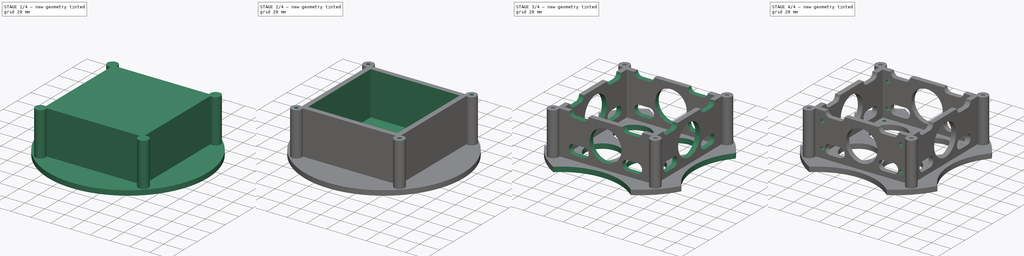
[diagram: build sequence overview — one tinted view per stage of 4, left to right]
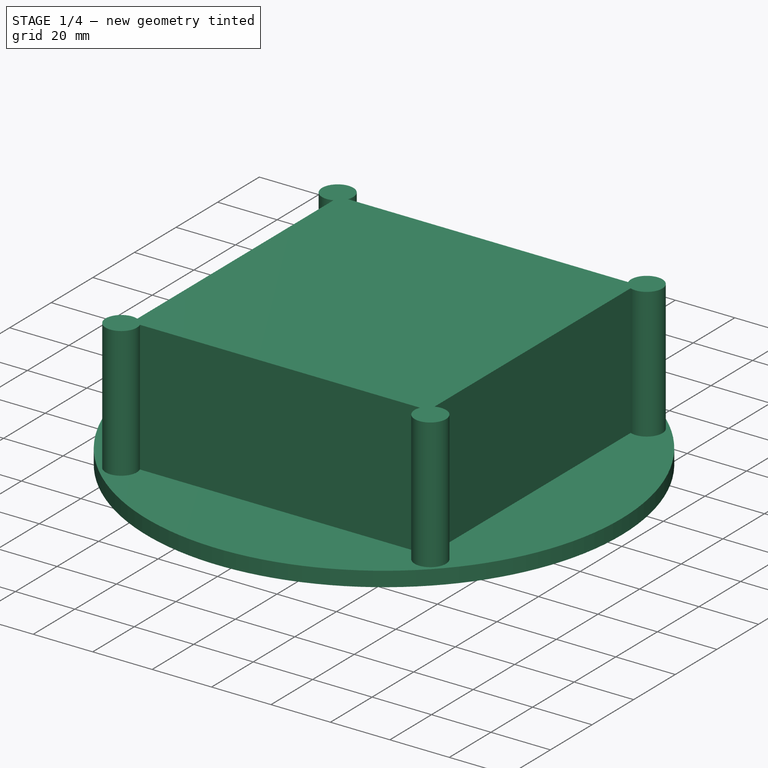
[diagram: stage 1 of 4 — iso view after this stage's code; geometry added in this stage tinted green]
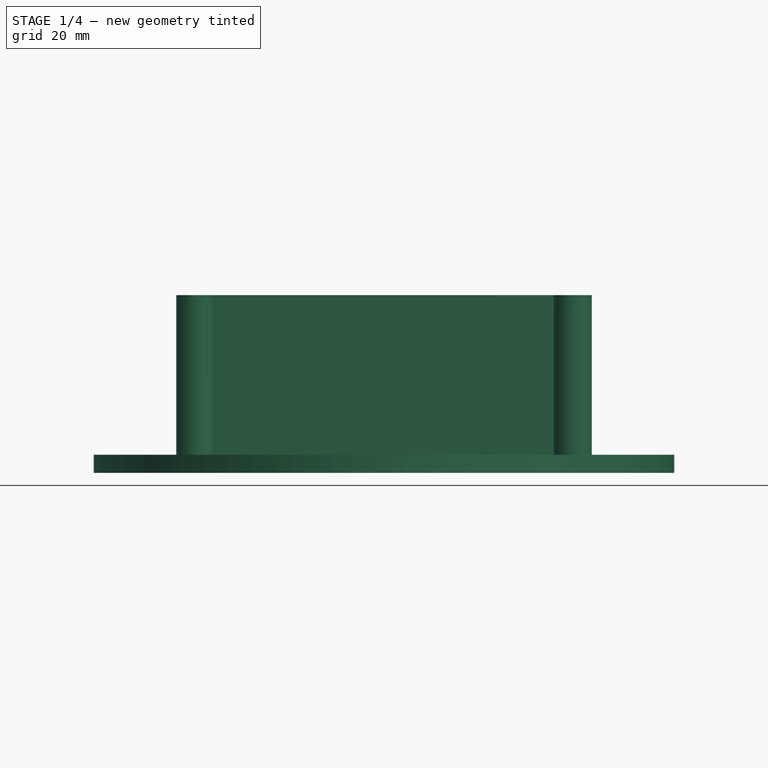
[diagram: stage 1 of 4 — front view after this stage's code; geometry added in this stage tinted green]
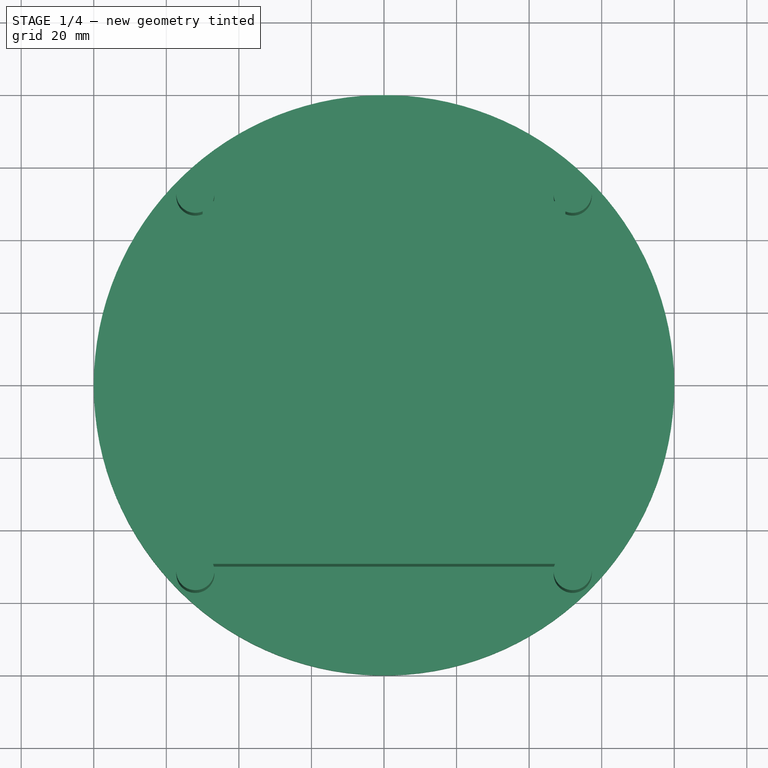
[diagram: stage 1 of 4 — top view after this stage's code; geometry added in this stage tinted green]
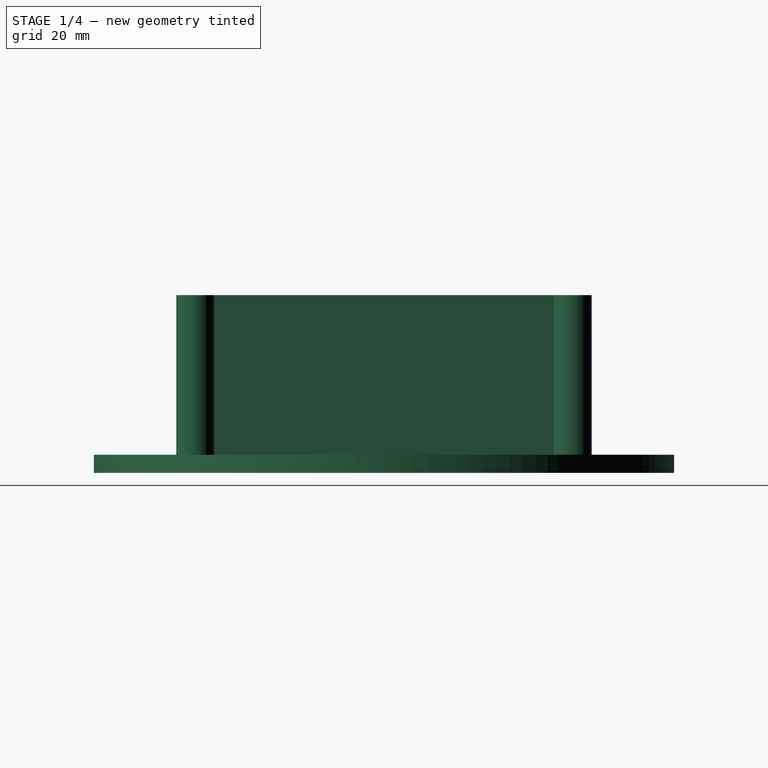
[diagram: stage 1 of 4 — right view after this stage's code; geometry added in this stage tinted green]
FCSTD DOCUMENT  (FreeCAD 0.14R3700 (Git))
Label: Speed4
License: CC-BY 3.0
LicenseURL: http://creativecommons.org/licenses/by/3.0/
objects: Sketcher::SketchObject×9, PartDesign::Pocket×7, PartDesign::Pad×2
note: 27 computed .brp shape members not serialized (recipe doc carries the construction recipe); baked Part::Feature solids carry a one-line shape summary decoded from their .brp

FEATURE [Sketcher::SketchObject] Sketch
  sketch-geometry (1):
    g0: Circle CenterX=0 CenterY=0 CenterZ=0 NormalX=0 NormalY=0 NormalZ=1 Radius=80
  constraints (2):
    c: Coincident(g0,g-1)
    c: Radius(g0) = 80
FEATURE [PartDesign::Pad] Pad
  Length = 5
  Length2 = 20
  Sketch = -> Sketch
  Type = 0
FEATURE [Sketcher::SketchObject] Sketch002
  Placement = pos=(0,0,5) rot=(0,0,1;0rad)
  Support = -> Pad [Face3]
  sketch-geometry (8):
    g0: ArcOfCircle CenterX=-52 CenterY=52 CenterZ=0 NormalX=0 NormalY=0 NormalZ=1 Radius=5.25 StartAngle=5.89236 EndAngle=11.3864
    g1: ArcOfCircle CenterX=-52 CenterY=-52 CenterZ=0 NormalX=0 NormalY=0 NormalZ=1 Radius=5.25 StartAngle=1.17997 EndAngle=6.67401
    g2: ArcOfCircle CenterX=52 CenterY=52 CenterZ=0 NormalX=0 NormalY=0 NormalZ=1 Radius=5.25 StartAngle=4.32156 EndAngle=9.8156
    g3: ArcOfCircle CenterX=52 CenterY=-52 CenterZ=0 NormalX=0 NormalY=0 NormalZ=1 Radius=5.25 StartAngle=2.75077 EndAngle=8.24481
    g4: LineSegment StartX=-47.1459 StartY=50 StartZ=0 EndX=47.1459 EndY=50 EndZ=0
    g5: LineSegment StartX=50 StartY=47.1459 StartZ=0 EndX=50 EndY=-47.1459 EndZ=0
    g6: LineSegment StartX=47.1459 StartY=-50 StartZ=0 EndX=-47.1459 EndY=-50 EndZ=0
    g7: LineSegment StartX=-50 StartY=-47.1459 StartZ=0 EndX=-50 EndY=47.1459 EndZ=0
  constraints (23):
    c: Radius(g0) = 5.25
    c: DistanceX(g-1,g0) = -52
    c: DistanceY(g-1,g0) = 52
    c: Radius(g1) = 5.25
    c: DistanceY(g-1,g1) = -52
    c: DistanceX(g-1,g1) = -52
    c: Radius(g2) = 5.25
    c: DistanceX(g-1,g2) = 52
    c: Radius(g3) = 5.25
    c: DistanceY(g-1,g3) = -52
    c: DistanceX(g-1,g3) = 52
    c: Horizontal(g4)
    c: Horizontal(g6)
    c: Vertical(g5)
    c: Vertical(g7)
    c: Coincident(g0,g4)
    c: Coincident(g0,g7)
    c: Coincident(g2,g5)
    c: Coincident(g2,g4)
    c: Coincident(g3,g6)
    c: Coincident(g3,g5)
    c: Coincident(g1,g7)
    c: Coincident(g1,g6)
FEATURE [PartDesign::Pad] Pad001
  Length = 44
  Length2 = 20
  Sketch = -> Sketch002
  Type = 0
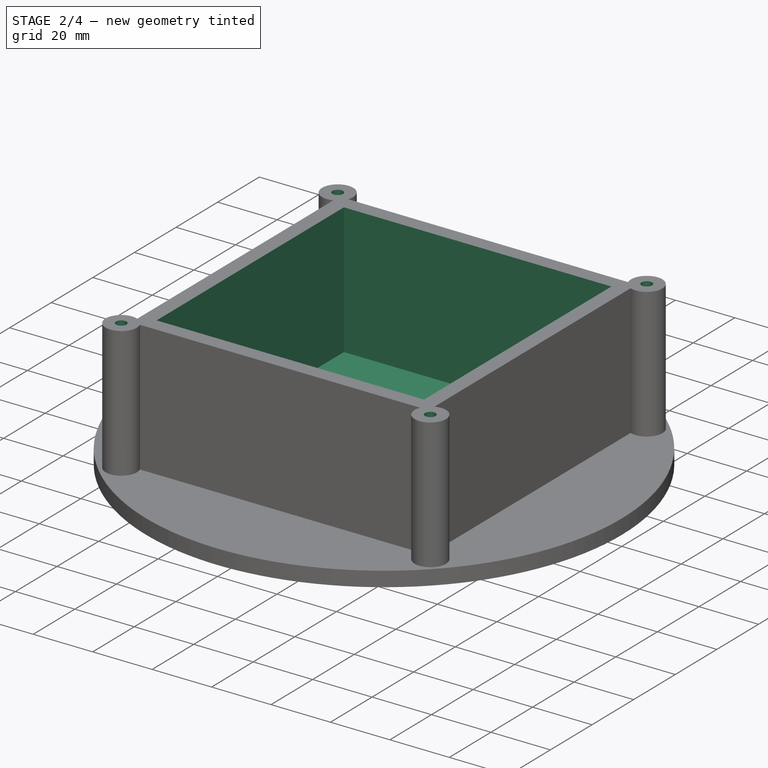
[diagram: stage 2 of 4 — iso view after this stage's code; geometry added in this stage tinted green]
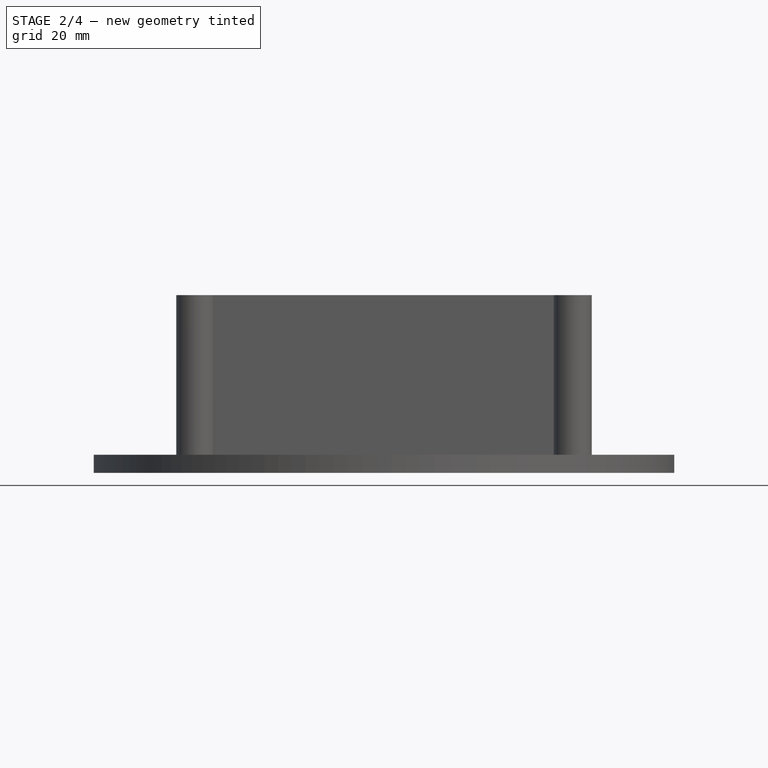
[diagram: stage 2 of 4 — front view after this stage's code; geometry added in this stage tinted green]
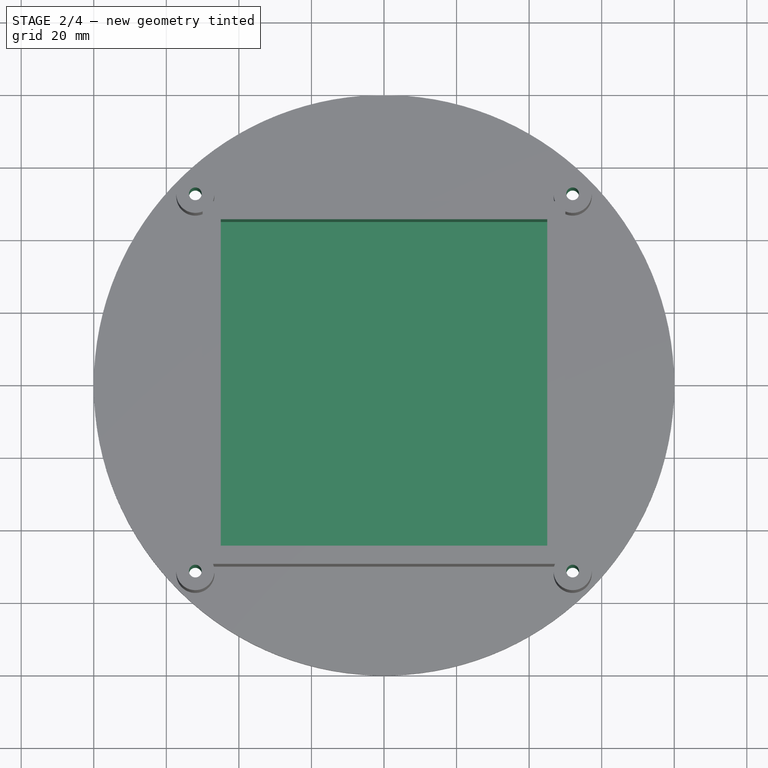
[diagram: stage 2 of 4 — top view after this stage's code; geometry added in this stage tinted green]
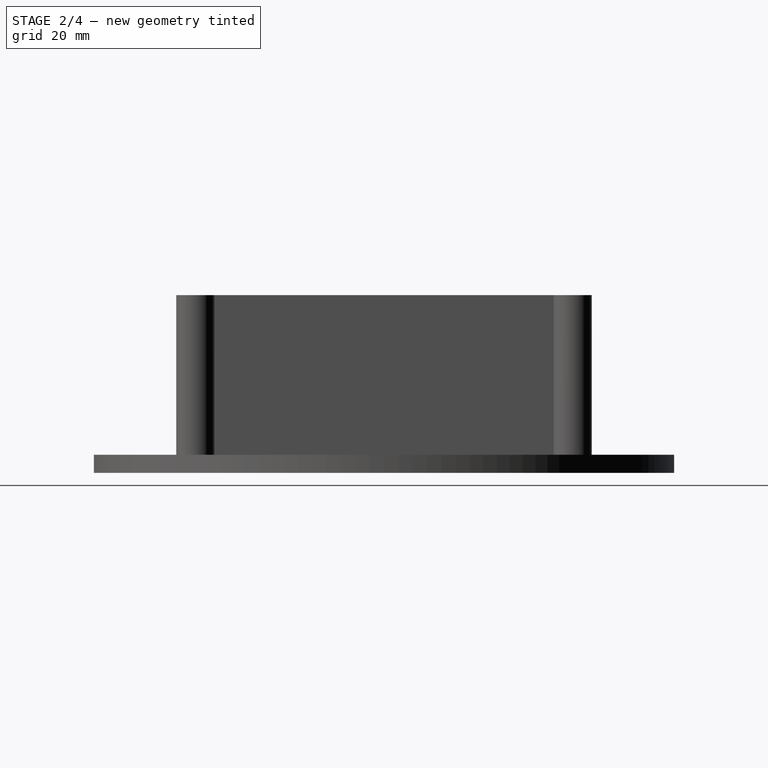
[diagram: stage 2 of 4 — right view after this stage's code; geometry added in this stage tinted green]
FEATURE [Sketcher::SketchObject] Sketch003
  Placement = pos=(0,0,49) rot=(0,0,1;0rad)
  Support = -> Pad001 [Face12]
  sketch-geometry (4):
    g0: LineSegment StartX=-45 StartY=45 StartZ=0 EndX=45 EndY=45 EndZ=0
    g1: LineSegment StartX=45 StartY=45 StartZ=0 EndX=45 EndY=-45 EndZ=0
    g2: LineSegment StartX=45 StartY=-45 StartZ=0 EndX=-45 EndY=-45 EndZ=0
    g3: LineSegment StartX=-45 StartY=-45 StartZ=0 EndX=-45 EndY=45 EndZ=0
  constraints (12):
    c: Coincident(g0,g1)
    c: Coincident(g1,g2)
    c: Coincident(g2,g3)
    c: Coincident(g3,g0)
    c: Horizontal(g0)
    c: Horizontal(g2)
    c: Vertical(g1)
    c: Vertical(g3)
    c: DistanceY(g-1,g0) = 45
    c: DistanceX(g-1,g0) = -45
    c: DistanceX(g-1,g1) = 45
    c: DistanceY(g-1,g1) = -45
FEATURE [PartDesign::Pocket] Pocket
  Length = 44
  Sketch = -> Sketch003
  Type = 0
FEATURE [Sketcher::SketchObject] Sketch004
  Placement = pos=(0,0,49) rot=(0,0,1;0rad)
  Support = -> Pocket [Face12]
  sketch-geometry (4):
    g0: Circle CenterX=-52 CenterY=-52 CenterZ=0 NormalX=0 NormalY=0 NormalZ=1 Radius=1.75
    g1: Circle CenterX=52 CenterY=52 CenterZ=0 NormalX=0 NormalY=0 NormalZ=1 Radius=1.75
    g2: Circle CenterX=52 CenterY=-52 CenterZ=0 NormalX=0 NormalY=0 NormalZ=1 Radius=1.75
    g3: Circle CenterX=-52 CenterY=52 CenterZ=0 NormalX=0 NormalY=0 NormalZ=1 Radius=1.75
  constraints (12):
    c: DistanceY(g-1,g3) = 52
    c: DistanceX(g-1,g3) = -52
    c: Radius(g3) = 1.75
    c: DistanceY(g-1,g0) = -52
    c: DistanceX(g-1,g0) = -52
    c: Radius(g0) = 1.75
    c: DistanceY(g-1,g2) = -52
    c: DistanceX(g-1,g2) = 52
    c: Radius(g2) = 1.75
    c: DistanceY(g-1,g1) = 52
    c: DistanceX(g-1,g1) = 52
    c: Radius(g1) = 1.75
FEATURE [PartDesign::Pocket] Pocket001
  Length = 5
  Sketch = -> Sketch004
  Type = 1
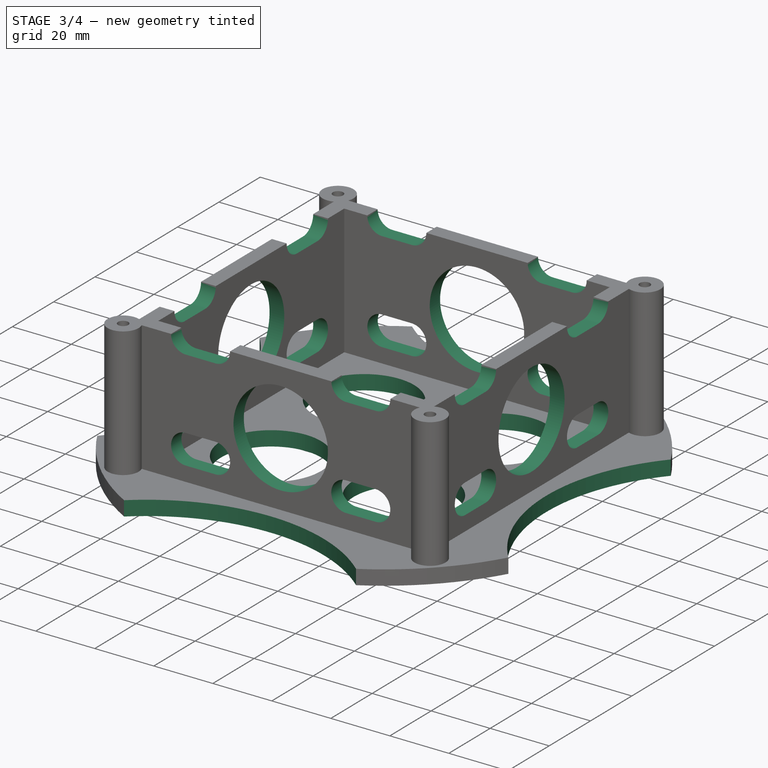
[diagram: stage 3 of 4 — iso view after this stage's code; geometry added in this stage tinted green]
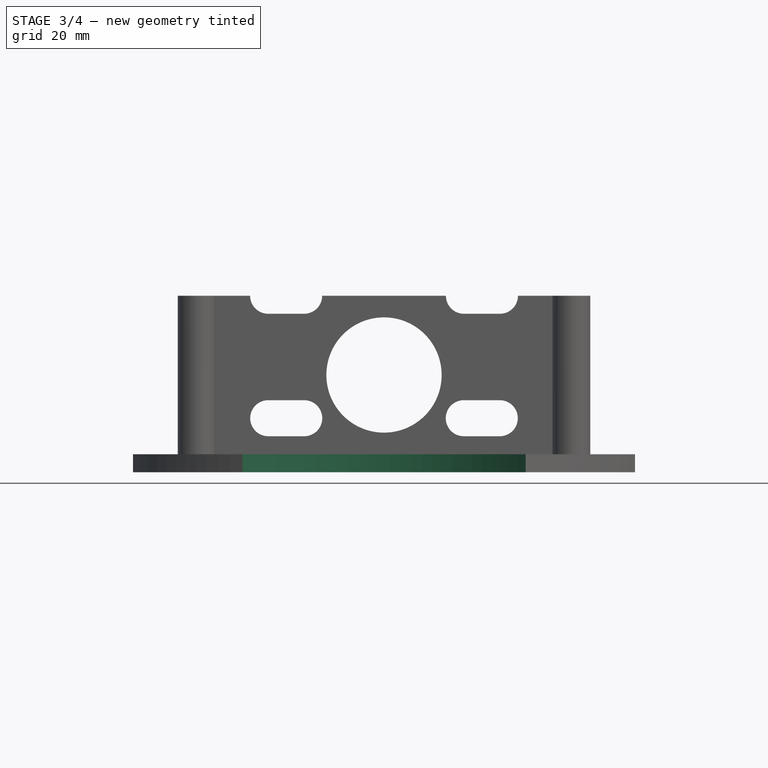
[diagram: stage 3 of 4 — front view after this stage's code; geometry added in this stage tinted green]
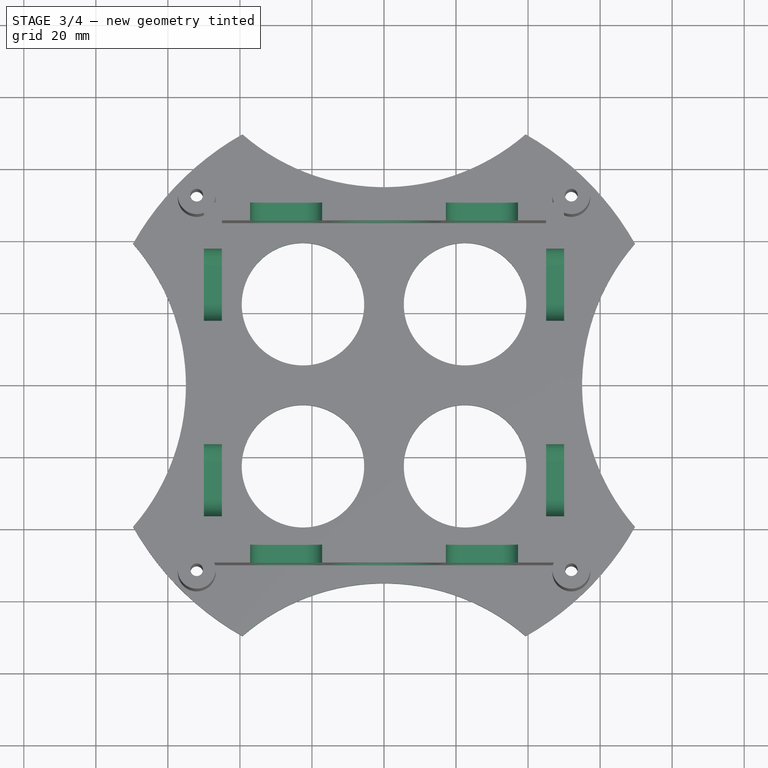
[diagram: stage 3 of 4 — top view after this stage's code; geometry added in this stage tinted green]
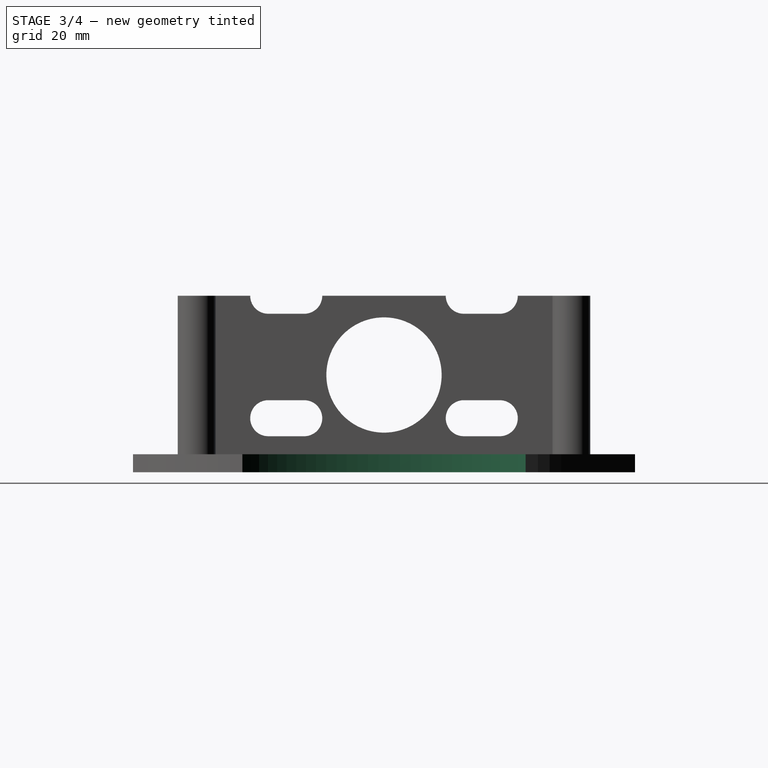
[diagram: stage 3 of 4 — right view after this stage's code; geometry added in this stage tinted green]
FEATURE [Sketcher::SketchObject] Sketch005
  Placement = pos=(0,0,5) rot=(0,0,1;0rad)
  Support = -> Pocket001 [Face21]
  sketch-geometry (8):
    g0: Circle CenterX=-22.5 CenterY=22.5 CenterZ=0 NormalX=0 NormalY=0 NormalZ=1 Radius=17
    g1: Circle CenterX=22.5 CenterY=22.5 CenterZ=0 NormalX=0 NormalY=0 NormalZ=1 Radius=17
    g2: Circle CenterX=-22.5 CenterY=-22.5 CenterZ=0 NormalX=0 NormalY=0 NormalZ=1 Radius=17
    g3: Circle CenterX=22.5 CenterY=-22.5 CenterZ=0 NormalX=0 NormalY=0 NormalZ=1 Radius=17
    g4: Circle CenterX=0 CenterY=-115 CenterZ=0 NormalX=0 NormalY=0 NormalZ=1 Radius=60
    g5: Circle CenterX=-115 CenterY=0 CenterZ=0 NormalX=0 NormalY=0 NormalZ=1 Radius=60
    g6: Circle CenterX=115 CenterY=0 CenterZ=0 NormalX=0 NormalY=0 NormalZ=1 Radius=60
    g7: Circle CenterX=0 CenterY=115 CenterZ=0 NormalX=0 NormalY=0 NormalZ=1 Radius=60
  constraints (24):
    c: DistanceY(g-1,g0) = 22.5
    c: DistanceX(g-1,g0) = -22.5
    c: Radius(g0) = 17
    c: DistanceX(g-1,g1) = 22.5
    c: DistanceY(g-1,g1) = 22.5
    c: Radius(g1) = 17
    c: DistanceX(g-1,g2) = -22.5
    c: DistanceY(g-1,g2) = -22.5
    c: DistanceX(g-1,g3) = 22.5
    c: DistanceY(g-1,g3) = -22.5
    c: Radius(g3) = 17
    c: Radius(g4) = 60
    c: DistanceY(g-1,g4) = -115
    c: DistanceX(g-1,g5) = -115
    c: Radius(g5) = 60
    c: DistanceY(g5) = 0
    c: DistanceX(g4) = 0
    c: Radius(g2) = 17
    c: DistanceX(g-1,g6) = 115
    c: Radius(g6) = 60
    c: DistanceY(g-1,g7) = 115
    c: Radius(g7) = 60
    c: DistanceY(g6) = 0
    c: DistanceX(g7) = 0
FEATURE [PartDesign::Pocket] Pocket002
  Length = 5
  Sketch = -> Sketch005
  Type = 1
FEATURE [Sketcher::SketchObject] Sketch006
  ExternalGeometry = -> [Pocket002]
  Placement = pos=(50,0,0) rot=(0.57735,0.57735,0.57735;2.0944rad)
  Support = -> Pocket002 [Face23]
  sketch-geometry (17):
    g0: ArcOfCircle CenterX=-32.1459 CenterY=15 CenterZ=0 NormalX=0 NormalY=0 NormalZ=1 Radius=5 StartAngle=1.57079 EndAngle=4.71239
    g1: ArcOfCircle CenterX=-22.1459 CenterY=15 CenterZ=0 NormalX=0 NormalY=0 NormalZ=1 Radius=5 StartAngle=4.71239 EndAngle=7.85398
    g2: LineSegment StartX=-32.1459 StartY=10 StartZ=0 EndX=-22.1459 EndY=10 EndZ=0
    g3: LineSegment StartX=-32.1458 StartY=20 StartZ=0 EndX=-22.1458 EndY=20 EndZ=0
    g4: ArcOfCircle CenterX=22.1459 CenterY=15 CenterZ=0 NormalX=0 NormalY=0 NormalZ=1 Radius=5 StartAngle=1.5708 EndAngle=4.71239
    g5: ArcOfCircle CenterX=32.1459 CenterY=15 CenterZ=0 NormalX=0 NormalY=0 NormalZ=1 Radius=5 StartAngle=4.71239 EndAngle=7.85399
    g6: LineSegment StartX=22.1459 StartY=10 StartZ=0 EndX=32.1459 EndY=10 EndZ=0
    g7: LineSegment StartX=22.1459 StartY=20 StartZ=0 EndX=32.1459 EndY=20 EndZ=0
    g8: Circle CenterX=0 CenterY=27 CenterZ=0 NormalX=0 NormalY=0 NormalZ=1 Radius=16
    g9: ArcOfCircle CenterX=-32.1459 CenterY=49 CenterZ=0 NormalX=0 NormalY=0 NormalZ=1 Radius=5 StartAngle=1.5708 EndAngle=4.71239
    g10: ArcOfCircle CenterX=-22.1459 CenterY=49 CenterZ=0 NormalX=0 NormalY=0 NormalZ=1 Radius=5 StartAngle=4.71239 EndAngle=7.85398
    g11: LineSegment StartX=-32.1459 StartY=44 StartZ=0 EndX=-22.1459 EndY=44 EndZ=0
    g12: LineSegment StartX=-32.1459 StartY=54 StartZ=0 EndX=-22.1459 EndY=54 EndZ=0
    g13: ArcOfCircle CenterX=22.1459 CenterY=49 CenterZ=0 NormalX=0 NormalY=0 NormalZ=1 Radius=5 StartAngle=1.5708 EndAngle=4.71239
    g14: ArcOfCircle CenterX=32.1459 CenterY=49 CenterZ=0 NormalX=0 NormalY=0 NormalZ=1 Radius=5 StartAngle=4.71238 EndAngle=7.85399
    g15: LineSegment StartX=22.1459 StartY=44 StartZ=0 EndX=32.1459 EndY=44 EndZ=0
    g16: LineSegment StartX=22.1459 StartY=54 StartZ=0 EndX=32.1459 EndY=54 EndZ=0
  constraints (30):
    c: Tangent(g9,g11)
    c: Tangent(g9,g12)
    c: Tangent(g10,g11)
    c: Tangent(g10,g12)
    c: Coincident(g9,g12)
    c: Coincident(g9,g11)
    c: Coincident(g11,g10)
    c: Coincident(g12,g10)
    c: Horizontal(g11)
    c: Equal(g9,g10)
    c: PointOnObject(g9,g-3)
    c: Radius(g10) = 5
    c: DistanceX(g9,g10) = 10
    c: DistanceX(g9,g-3) = -15
    c: Radius(g8) = 16
    c: DistanceY(g8,g-3) = 22
    c: Tangent(g13,g15)
    c: Tangent(g13,g16)
    c: Tangent(g14,g15)
    c: Tangent(g14,g16)
    c: Coincident(g13,g16)
    c: Coincident(g13,g15)
    c: Coincident(g15,g14)
    c: Coincident(g16,g14)
    c: Horizontal(g15)
    c: Equal(g13,g14)
    c: PointOnObject(g13,g-3)
    c: Radius(g13) = 5
    c: DistanceX(g13,g14) = 10
    c: DistanceX(g14,g-3) = 15
FEATURE [PartDesign::Pocket] Pocket003
  Length = 5
  Sketch = -> Sketch006
  Type = 1
FEATURE [Sketcher::SketchObject] Sketch007
  ExternalGeometry = -> [Pocket003]
  Placement = pos=(0,-50,0) rot=(1,0,0;1.5708rad)
  Support = -> Pocket003 [Face20]
  sketch-geometry (17):
    g0: ArcOfCircle CenterX=-32.1654 CenterY=49 CenterZ=0 NormalX=0 NormalY=0 NormalZ=1 Radius=5 StartAngle=1.5708 EndAngle=4.71239
    g1: ArcOfCircle CenterX=-22.1654 CenterY=49 CenterZ=0 NormalX=0 NormalY=0 NormalZ=1 Radius=5 StartAngle=4.71239 EndAngle=7.85398
    g2: LineSegment StartX=-32.1654 StartY=44 StartZ=0 EndX=-22.1654 EndY=44 EndZ=0
    g3: LineSegment StartX=-32.1654 StartY=54 StartZ=0 EndX=-22.1654 EndY=54 EndZ=0
    g4: ArcOfCircle CenterX=32.1893 CenterY=49 CenterZ=0 NormalX=0 NormalY=0 NormalZ=1 Radius=5 StartAngle=4.71239 EndAngle=7.85398
    g5: ArcOfCircle CenterX=22.1893 CenterY=49 CenterZ=0 NormalX=0 NormalY=0 NormalZ=1 Radius=5 StartAngle=1.5708 EndAngle=4.71239
    g6: LineSegment StartX=32.1893 StartY=54 StartZ=0 EndX=22.1893 EndY=54 EndZ=0
    g7: LineSegment StartX=32.1893 StartY=44 StartZ=0 EndX=22.1893 EndY=44 EndZ=0
    g8: ArcOfCircle CenterX=-32.1459 CenterY=15 CenterZ=0 NormalX=0 NormalY=0 NormalZ=1 Radius=5 StartAngle=1.5708 EndAngle=4.71239
    g9: ArcOfCircle CenterX=-22.1459 CenterY=15 CenterZ=0 NormalX=0 NormalY=0 NormalZ=1 Radius=5 StartAngle=4.71239 EndAngle=7.85399
    g10: LineSegment StartX=-32.1459 StartY=10 StartZ=0 EndX=-22.1459 EndY=10 EndZ=0
    g11: LineSegment StartX=-32.1459 StartY=20 StartZ=0 EndX=-22.1459 EndY=20 EndZ=0
    g12: ArcOfCircle CenterX=22.1459 CenterY=15 CenterZ=0 NormalX=0 NormalY=0 NormalZ=1 Radius=5 StartAngle=1.57079 EndAngle=4.71239
    g13: ArcOfCircle CenterX=32.1459 CenterY=15 CenterZ=0 NormalX=0 NormalY=0 NormalZ=1 Radius=5 StartAngle=4.71239 EndAngle=7.85398
    g14: LineSegment StartX=22.1459 StartY=10 StartZ=0 EndX=32.1459 EndY=10 EndZ=0
    g15: LineSegment StartX=22.1459 StartY=20 StartZ=0 EndX=32.1459 EndY=20 EndZ=0
    g16: Circle CenterX=0 CenterY=27 CenterZ=0 NormalX=0 NormalY=0 NormalZ=1 Radius=16
  constraints (53):
    c: Tangent(g0,g2)
    c: Tangent(g0,g3)
    c: Tangent(g1,g2)
    c: Tangent(g1,g3)
    c: Coincident(g0,g3)
    c: Coincident(g0,g2)
    c: Coincident(g2,g1)
    c: Coincident(g3,g1)
    c: Horizontal(g2)
    c: Equal(g0,g1)
    c: Radius(g1) = 5
    c: DistanceX(g0,g1) = 10
    c: Tangent(g4,g6)
    c: Tangent(g4,g7)
    c: Tangent(g5,g6)
    c: Tangent(g5,g7)
    c: Coincident(g4,g7)
    c: Coincident(g4,g6)
    c: Coincident(g6,g5)
    c: Coincident(g7,g5)
    c: Horizontal(g6)
    c: Equal(g4,g5)
    c: Radius(g5) = 5
    c: DistanceX(g5,g4) = 10
    c: Tangent(g8,g10)
    c: Tangent(g8,g11)
    c: Tangent(g9,g10)
    c: Tangent(g9,g11)
    c: Coincident(g8,g11)
    c: Coincident(g8,g10)
    c: Coincident(g10,g9)
    c: Coincident(g11,g9)
    c: Horizontal(g10)
    c: Equal(g8,g9)
    c: Radius(g9) = 5
    c: DistanceX(g9,g8) = -10
    c: Tangent(g12,g14)
    c: Tangent(g12,g15)
    c: Tangent(g13,g14)
    c: Tangent(g13,g15)
    c: Coincident(g12,g15)
    c: Coincident(g12,g14)
    c: Coincident(g14,g13)
    c: Coincident(g15,g13)
    c: Horizontal(g14)
    c: Equal(g12,g13)
    c: Radius(g12) = 5
    c: DistanceX(g12,g13) = 10
    c: PointOnObject(g16,g-2)
    c: Radius(g16) = 16
    c: DistanceY(g0,g-3) = 0
    c: DistanceY(g4,g-3) = 0
    c: DistanceY(g16,g-3) = 22
FEATURE [PartDesign::Pocket] Pocket004
  Length = 5
  Sketch = -> Sketch007
  Type = 1
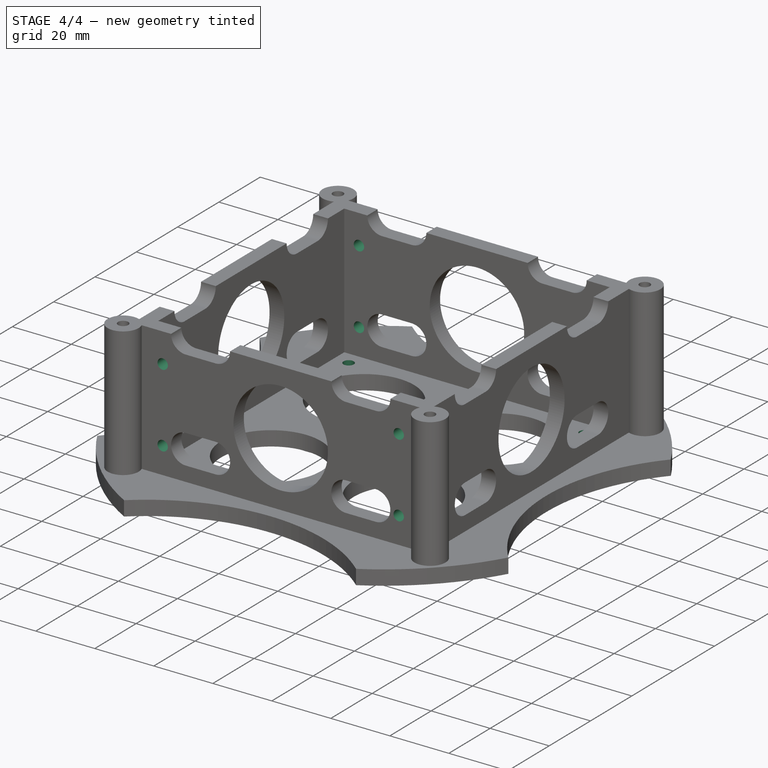
[diagram: stage 4 of 4 — iso view after this stage's code; geometry added in this stage tinted green]
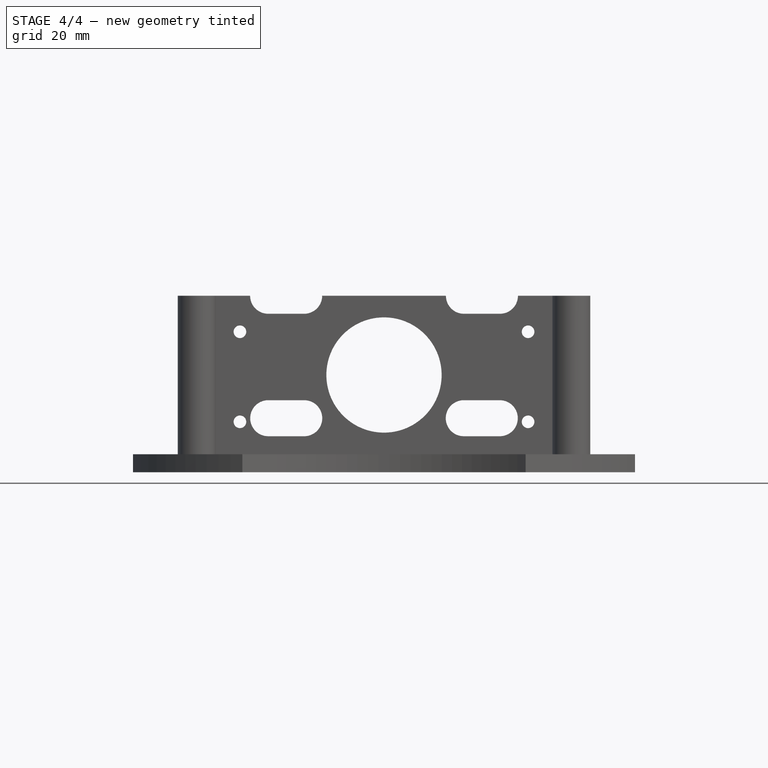
[diagram: stage 4 of 4 — front view after this stage's code; geometry added in this stage tinted green]
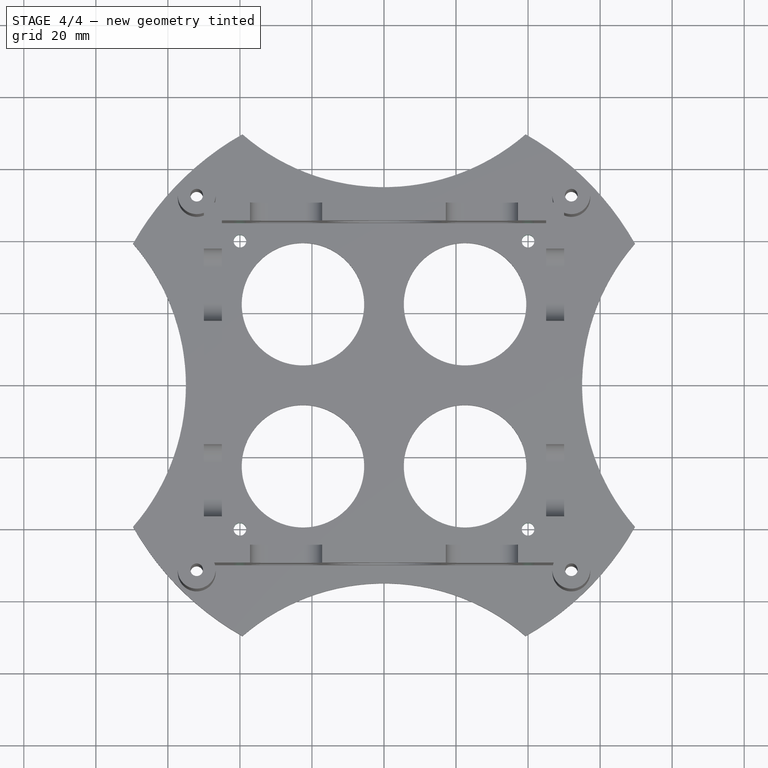
[diagram: stage 4 of 4 — top view after this stage's code; geometry added in this stage tinted green]
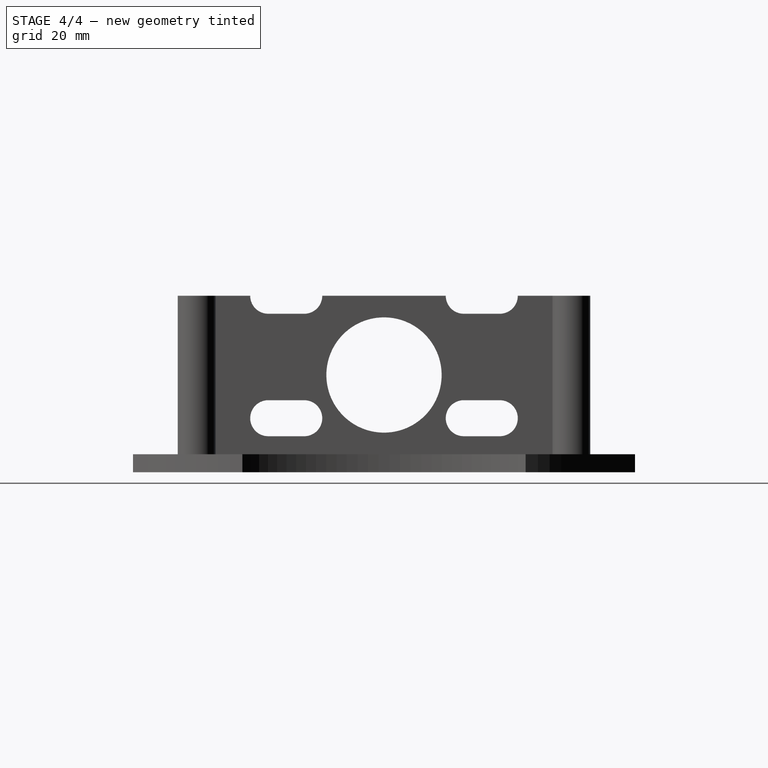
[diagram: stage 4 of 4 — right view after this stage's code; geometry added in this stage tinted green]
FEATURE [Sketcher::SketchObject] Sketch010
  Placement = pos=(0,50,0) rot=(0,0.707107,0.707107;3.14159rad)
  Support = -> Pocket004 [Face27]
  sketch-geometry (4):
    g0: Circle CenterX=-40 CenterY=39 CenterZ=0 NormalX=0 NormalY=0 NormalZ=1 Radius=1.75
    g1: Circle CenterX=-40 CenterY=14 CenterZ=0 NormalX=0 NormalY=0 NormalZ=1 Radius=1.75
    g2: Circle CenterX=40 CenterY=14 CenterZ=0 NormalX=0 NormalY=0 NormalZ=1 Radius=1.75
    g3: Circle CenterX=40 CenterY=39 CenterZ=0 NormalX=0 NormalY=0 NormalZ=1 Radius=1.75
  constraints (12):
    c: Radius(g0) = 1.75
    c: Radius(g1) = 1.75
    c: Radius(g2) = 1.75
    c: Radius(g3) = 1.75
    c: DistanceX(g0) = -40
    c: DistanceY(g1) = 14
    c: DistanceX(g1) = -40
    c: DistanceX(g2) = 40
    c: DistanceY(g2) = 14
    c: DistanceX(g3) = 40
    c: DistanceY(g0,g1) = -25
    c: DistanceY(g2,g3) = 25
FEATURE [PartDesign::Pocket] Pocket005
  Length = 5
  Sketch = -> Sketch010
  Type = 1
FEATURE [Sketcher::SketchObject] Sketch011
  ExternalGeometry = -> [Pocket005]
  Placement = pos=(0,0,5) rot=(0,0,1;0rad)
  Support = -> Pocket005 [Face32]
  sketch-geometry (4):
    g0: Circle CenterX=40 CenterY=40 CenterZ=0 NormalX=0 NormalY=0 NormalZ=1 Radius=1.75
    g1: Circle CenterX=-40 CenterY=40 CenterZ=0 NormalX=0 NormalY=0 NormalZ=1 Radius=1.75
    g2: Circle CenterX=-40 CenterY=-40 CenterZ=0 NormalX=0 NormalY=0 NormalZ=1 Radius=1.75
    g3: Circle CenterX=40 CenterY=-40 CenterZ=0 NormalX=0 NormalY=0 NormalZ=1 Radius=1.75
  constraints (10):
    c: Radius(g1) = 1.75
    c: Radius(g2) = 1.75
    c: Radius(g0) = 1.75
    c: Radius(g3) = 1.75
    c: DistanceY(g1,g2) = -80
    c: DistanceY(g0,g3) = -80
    c: DistanceX(g2,g3) = 80
    c: DistanceX(g1,g0) = 80
    c: DistanceX(g0) = 40
    c: DistanceY(g0) = 40
FEATURE [PartDesign::Pocket] Pocket006
  Length = 5
  Sketch = -> Sketch011
  Type = 1
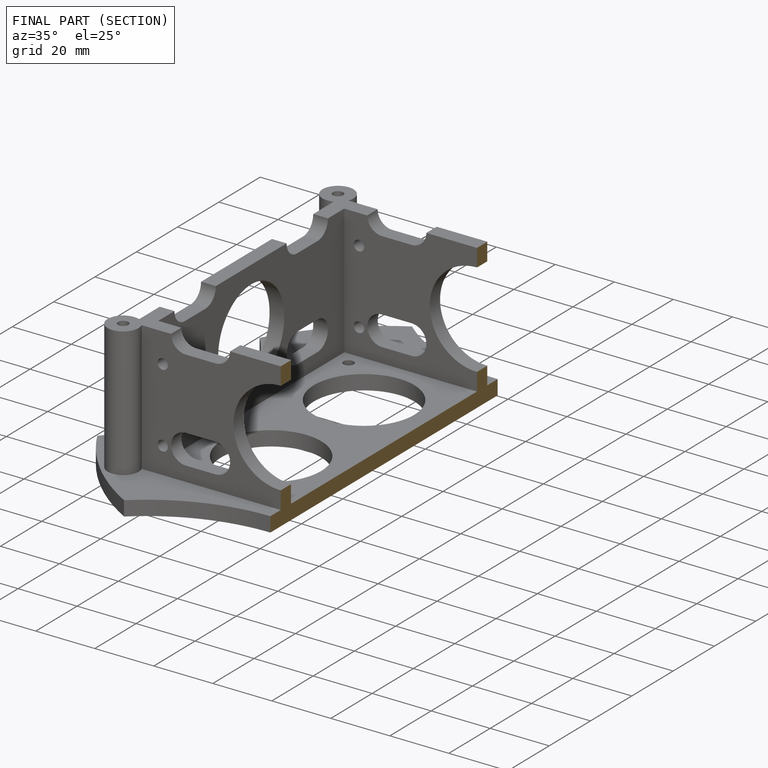
[diagram: finished part — half-section view (interior)]
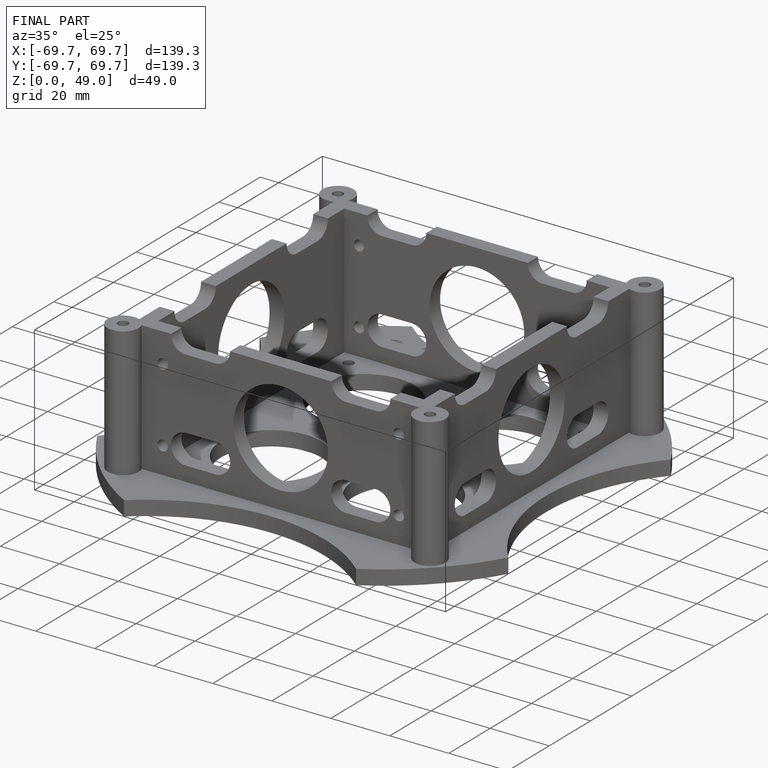
[diagram: finished part — iso view with bounding-box wireframe]
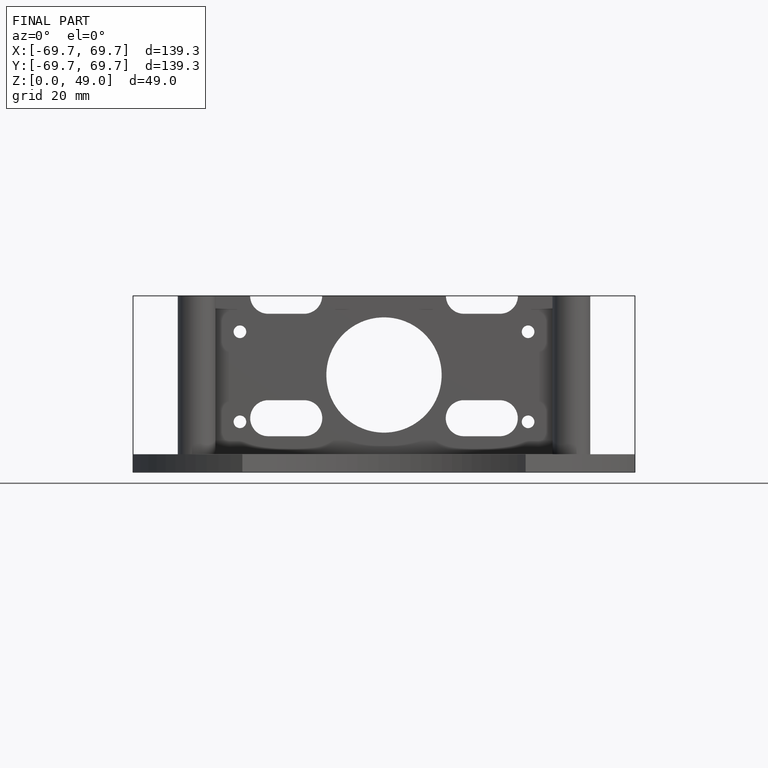
[diagram: finished part — front view with bounding-box wireframe]
